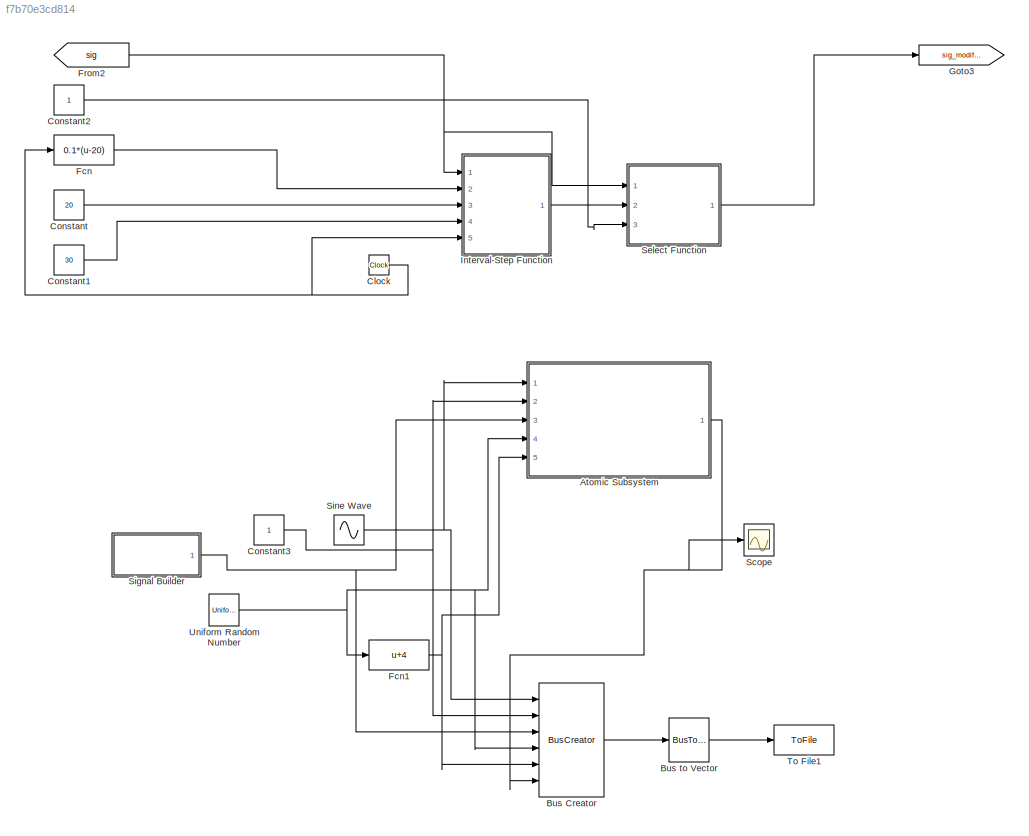
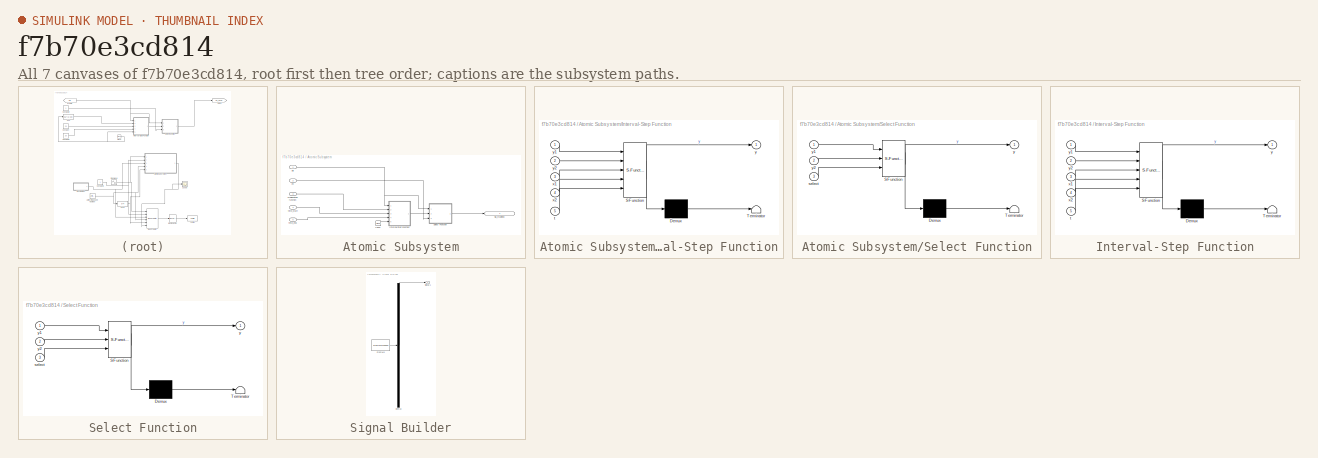
[diagram: thumbnail index - all 7 canvases of the model, root first then tree order]
MODEL slx_f7b70e3cd814
KIND model
CONFIG AbsTol = auto
CONFIG EnableMultiTasking = off
CONFIG FixedStep = auto
CONFIG MaxStep = auto
CONFIG MinStep = auto
CONFIG RelTol = 1e-3
CONFIG SampleTimeConstraint = Unconstrained
CONFIG Solver = VariableStepAuto
CONFIG SolverName = VariableStepAuto
CONFIG StartTime = 0.0
CONFIG StopTime = 10.0
BLOCK [SubSystem] Atomic Subsystem
  Ports = [5, 1]
  RequestExecContextInheritance = off
  TreatAsAtomicUnit = on
BLOCK [Clock] Atomic Subsystem/Clock
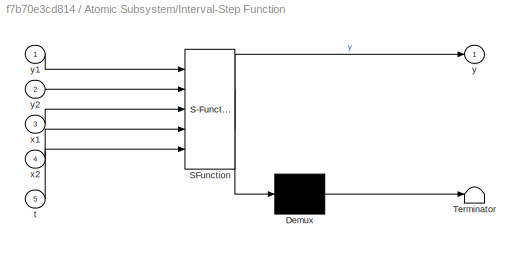
BLOCK [SubSystem] Atomic Subsystem/Interval-Step Function
  ErrorFcn = Stateflow.Translate.translate
  PermitHierarchicalResolution = ExplicitOnly
  Ports = [5, 1]
  RequestExecContextInheritance = off
  SFBlockType = MATLAB Function
  TreatAsAtomicUnit = on
BLOCK [Demux] Atomic Subsystem/Interval-Step Function/ Demux 
  Outputs = 1
  Ports = [1, 1]
BLOCK [S-Function] Atomic Subsystem/Interval-Step Function/ SFunction 
  EnableBusSupport = on
  FunctionName = sf_sfun
  PortCounts = [5 2]
  Ports = [5, 2]
  SFcnIsStateOwnerBlock = off
  SFunctionDeploymentMode = off
  Tag = Stateflow S-Function sig_mod_block_2 1
BLOCK [Terminator] Atomic Subsystem/Interval-Step Function/ Terminator 
BLOCK [Inport] Atomic Subsystem/Interval-Step Function/t
  IconDisplay = Port number
  Port = 5
BLOCK [Inport] Atomic Subsystem/Interval-Step Function/x1
  IconDisplay = Port number
  Port = 3
BLOCK [Inport] Atomic Subsystem/Interval-Step Function/x2
  IconDisplay = Port number
  Port = 4
BLOCK [Outport] Atomic Subsystem/Interval-Step Function/y
  IconDisplay = Port number
BLOCK [Inport] Atomic Subsystem/Interval-Step Function/y1
  IconDisplay = Port number
BLOCK [Inport] Atomic Subsystem/Interval-Step Function/y2
  IconDisplay = Port number
  Port = 2
BLOCK [SubSystem] Atomic Subsystem/Select Function
  ErrorFcn = Stateflow.Translate.translate
  PermitHierarchicalResolution = ExplicitOnly
  Ports = [3, 1]
  RequestExecContextInheritance = off
  SFBlockType = MATLAB Function
  TreatAsAtomicUnit = on
BLOCK [Demux] Atomic Subsystem/Select Function/ Demux 
  Outputs = 1
  Ports = [1, 1]
BLOCK [S-Function] Atomic Subsystem/Select Function/ SFunction 
  EnableBusSupport = on
  FunctionName = sf_sfun
  PortCounts = [3 2]
  Ports = [3, 2]
  SFcnIsStateOwnerBlock = off
  SFunctionDeploymentMode = off
  Tag = Stateflow S-Function sig_mod_block_2 4
BLOCK [Terminator] Atomic Subsystem/Select Function/ Terminator 
BLOCK [Inport] Atomic Subsystem/Select Function/select
  IconDisplay = Port number
  Port = 3
BLOCK [Outport] Atomic Subsystem/Select Function/y
  IconDisplay = Port number
BLOCK [Inport] Atomic Subsystem/Select Function/y1
  IconDisplay = Port number
BLOCK [Inport] Atomic Subsystem/Select Function/y2
  IconDisplay = Port number
  Port = 2
BLOCK [Inport] Atomic Subsystem/en
  IconDisplay = Port number
  Port = 2
BLOCK [Inport] Atomic Subsystem/modification function
  IconDisplay = Port number
  Port = 3
BLOCK [Inport] Atomic Subsystem/sig
  IconDisplay = Port number
BLOCK [Outport] Atomic Subsystem/sig_modified
  IconDisplay = Port number
BLOCK [Inport] Atomic Subsystem/time_end
  IconDisplay = Port number
  Port = 5
BLOCK [Inport] Atomic Subsystem/time_start
  IconDisplay = Port number
  Port = 4
BLOCK [BusCreator] Bus Creator
  DisplayOption = bar
  InheritFromInputs = on
  Inputs = 6
  Ports = [6, 1]
BLOCK [BusToVector] Bus to Vector
BLOCK [Clock] Clock
BLOCK [Constant] Constant
  Value = 20
BLOCK [Constant] Constant1
  Value = 30
BLOCK [Constant] Constant2
BLOCK [Constant] Constant3
BLOCK [Fcn] Fcn
  Expr = 0.1*(u-20)
BLOCK [Fcn] Fcn1
  Expr = u+4
BLOCK [From] From2
  GotoTag = sig
BLOCK [Goto] Goto3
  GotoTag = sig_modified
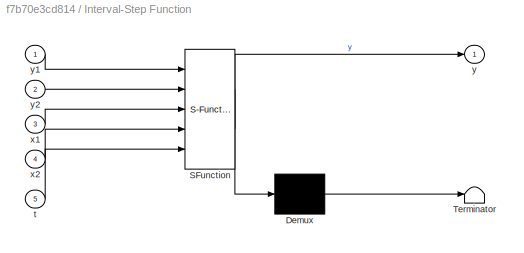
BLOCK [SubSystem] Interval-Step Function
  ErrorFcn = Stateflow.Translate.translate
  PermitHierarchicalResolution = ExplicitOnly
  Ports = [5, 1]
  RequestExecContextInheritance = off
  SFBlockType = MATLAB Function
  TreatAsAtomicUnit = on
BLOCK [Demux] Interval-Step Function/ Demux 
  Outputs = 1
  Ports = [1, 1]
BLOCK [S-Function] Interval-Step Function/ SFunction 
  EnableBusSupport = on
  FunctionName = sf_sfun
  PortCounts = [5 2]
  Ports = [5, 2]
  SFcnIsStateOwnerBlock = off
  SFunctionDeploymentMode = off
  Tag = Stateflow S-Function sig_mod_block_2 3
BLOCK [Terminator] Interval-Step Function/ Terminator 
BLOCK [Inport] Interval-Step Function/t
  IconDisplay = Port number
  Port = 5
BLOCK [Inport] Interval-Step Function/x1
  IconDisplay = Port number
  Port = 3
BLOCK [Inport] Interval-Step Function/x2
  IconDisplay = Port number
  Port = 4
BLOCK [Outport] Interval-Step Function/y
  IconDisplay = Port number
BLOCK [Inport] Interval-Step Function/y1
  IconDisplay = Port number
BLOCK [Inport] Interval-Step Function/y2
  IconDisplay = Port number
  Port = 2
BLOCK [Scope] Scope
  Floating = off
  NumInputPorts = 1
  Ports = [1]
  ScopeSpecificationString = Simulink.scopes.TimeScopeBlockCfg('CurrentConfiguration', extmgr.ConfigurationSet(extmgr.Configuration('Core','General UI',true),extmgr.Configuration('Core','Source UI',true),extmgr.Configuration('Sources','WiredSimulink',true),extmgr.Configuration('Visuals','Time Domain',true,'SerializedDisplays',{struct('MinYLimReal','-1.30526','MaxYLimReal','1.92281','YLabelReal','','MinYLimMag','0.00000','MaxY...<+1378ch>
BLOCK [SubSystem] Select Function
  ErrorFcn = Stateflow.Translate.translate
  PermitHierarchicalResolution = ExplicitOnly
  Ports = [3, 1]
  RequestExecContextInheritance = off
  SFBlockType = MATLAB Function
  TreatAsAtomicUnit = on
BLOCK [Demux] Select Function/ Demux 
  Outputs = 1
  Ports = [1, 1]
BLOCK [S-Function] Select Function/ SFunction 
  EnableBusSupport = on
  FunctionName = sf_sfun
  PortCounts = [3 2]
  Ports = [3, 2]
  SFcnIsStateOwnerBlock = off
  SFunctionDeploymentMode = off
  Tag = Stateflow S-Function sig_mod_block_2 2
BLOCK [Terminator] Select Function/ Terminator 
BLOCK [Inport] Select Function/select
  IconDisplay = Port number
  Port = 3
BLOCK [Outport] Select Function/y
  IconDisplay = Port number
BLOCK [Inport] Select Function/y1
  IconDisplay = Port number
BLOCK [Inport] Select Function/y2
  IconDisplay = Port number
  Port = 2
BLOCK [SubSystem] Signal Builder
  ClipboardFcn = sigbuilder_block('clipboard');
  CloseFcn = sigbuilder_block('close');
  ContinueFcn = sigbuilder_block('continue');
  CopyFcn = sigbuilder_block('copy');
  DeleteFcn = sigbuilder_block('delete');
  LoadFcn = sigbuilder_block('load');
  MaskHideContents = on
  ModelCloseFcn = sigbuilder_block('modelClose');
  NameChangeFcn = sigbuilder_block('namechange');
  OpenFcn = sigbuilder_block('open',[152 61.5 550.5 362.5 ]);
  PauseFcn = sigbuilder_block('pause');
  Ports = [0, 1]
  PreSaveFcn = sigbuilder_block('preSave');
  RequestExecContextInheritance = off
  StartFcn = sigbuilder_block('start');
  StopFcn = sigbuilder_block('stop');
  Tag = STV Subsys
BLOCK [Demux] Signal Builder/Demux
  Outputs = 1
  Ports = [1, 1]
  Tag = STV Demux
BLOCK [FromWorkspace] Signal Builder/FromWs
  SampleTime = 0
  Tag = STV FromWs
  VariableName = tuvar
  ZeroCross = on
BLOCK [Outport] Signal Builder/Signal 1
  IconDisplay = Port number
  Tag = STV Outport
BLOCK [Sin] Sine Wave
  Ports = [0, 1]
  SampleTime = 0
BLOCK [ToFile] To File1
  Filename = sig_mod.mat
  MatrixName = signal
  Ports = [1]
  SaveFormat = Timeseries
BLOCK [UniformRandomNumber] Uniform Random Number
  Maximum = 6
  Minimum = 0
  SampleTime = 0.1
  Seed = randi(intmax)
LINE Atomic Subsystem/Clock:1 -> Atomic Subsystem/Interval-Step Function:5
LINE Atomic Subsystem/Interval-Step Function:1 -> Atomic Subsystem/Select Function:2
LINE Atomic Subsystem/Select Function:1 -> Atomic Subsystem/sig_modified:1
LINE Atomic Subsystem/en:1 -> Atomic Subsystem/Select Function:3
LINE Atomic Subsystem/modification function:1 -> Atomic Subsystem/Interval-Step Function:2
NET Atomic Subsystem/sig:1 -> Atomic Subsystem/Interval-Step Function:1, Atomic Subsystem/Select Function:1
LINE Atomic Subsystem/time_end:1 -> Atomic Subsystem/Interval-Step Function:4
LINE Atomic Subsystem/time_start:1 -> Atomic Subsystem/Interval-Step Function:3
NET Atomic Subsystem:1 -> Bus Creator:6, Scope:1
LINE Bus Creator:1 -> Bus to Vector:1
LINE Bus to Vector:1 -> To File1:1
NET Clock:1 -> Fcn:1, Interval-Step Function:5
LINE Constant1:1 -> Interval-Step Function:4
LINE Constant2:1 -> Select Function:3
NET Constant3:1 -> Atomic Subsystem:2, Bus Creator:2
LINE Constant:1 -> Interval-Step Function:3
NET Fcn1:1 -> Atomic Subsystem:5, Bus Creator:5
LINE Fcn:1 -> Interval-Step Function:2
NET From2:1 -> Interval-Step Function:1, Select Function:1
LINE Interval-Step Function:1 -> Select Function:2
LINE Select Function:1 -> Goto3:1
NET Signal Builder:1 -> Atomic Subsystem:3, Bus Creator:3
NET Sine Wave:1 -> Atomic Subsystem:1, Bus Creator:1
NET Uniform Random Number:1 -> Atomic Subsystem:4, Bus Creator:4, Fcn1:1
note: NET lines group one-source signal fan-out (src -> all destinations, sorted); 1:1 wires keep LINE
CHART Atomic Subsystem/Interval-Step Function states=1 transitions=1
  STATE_LABEL 'eML_blk_kernel()'
  STATE_LABEL 'SCRIPT:\nfunction y = fcn(y1,y2,x1,x2,t)\n\nif (x1<=t)&&(t<x2)\n    y=y2;\nelse\n    y=y1;\nend\n'
CHART Select Function states=1 transitions=1
  STATE_LABEL 'eML_blk_kernel()'
  STATE_LABEL 'SCRIPT:\nfunction y = fcn(y1,y2,select)\n\nif select>=1\n    y=y2;\nelse\n    y=y1;\nend'
CHART Interval-Step Function states=1 transitions=1
  STATE_LABEL 'eML_blk_kernel()'
  STATE_LABEL 'SCRIPT:\nfunction y = fcn(y1,y2,x1,x2,t)\n\nif (x1<=t)&&(t<x2)\n    y=y2;\nelse\n    y=y1;\nend\n'
CHART Atomic Subsystem/Select Function states=1 transitions=1
  STATE_LABEL 'eML_blk_kernel()'
  STATE_LABEL 'SCRIPT:\nfunction y = fcn(y1,y2,select)\n\nif select>=1\n    y=y2;\nelse\n    y=y1;\nend'
